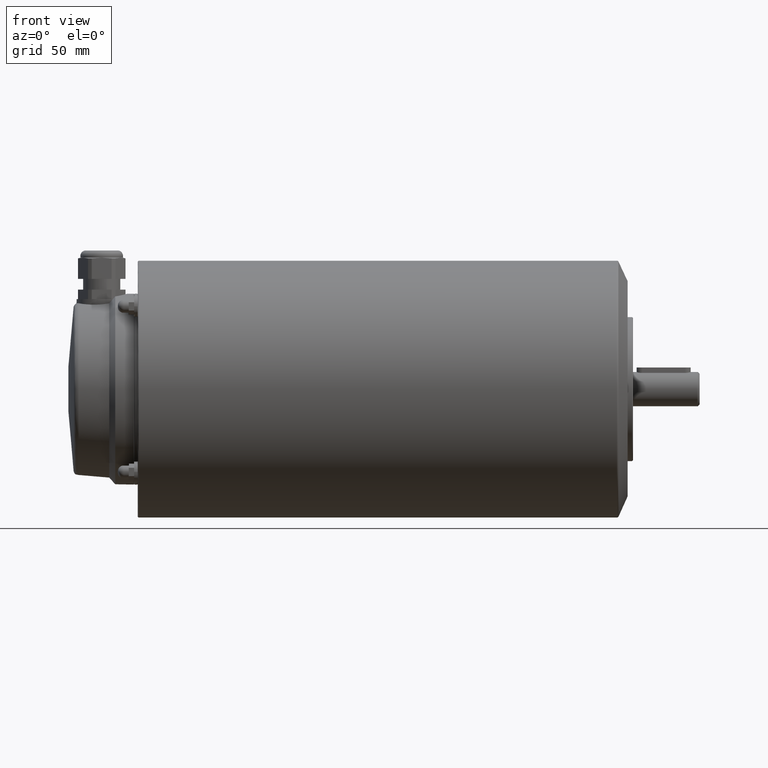
[diagram: clean part render]
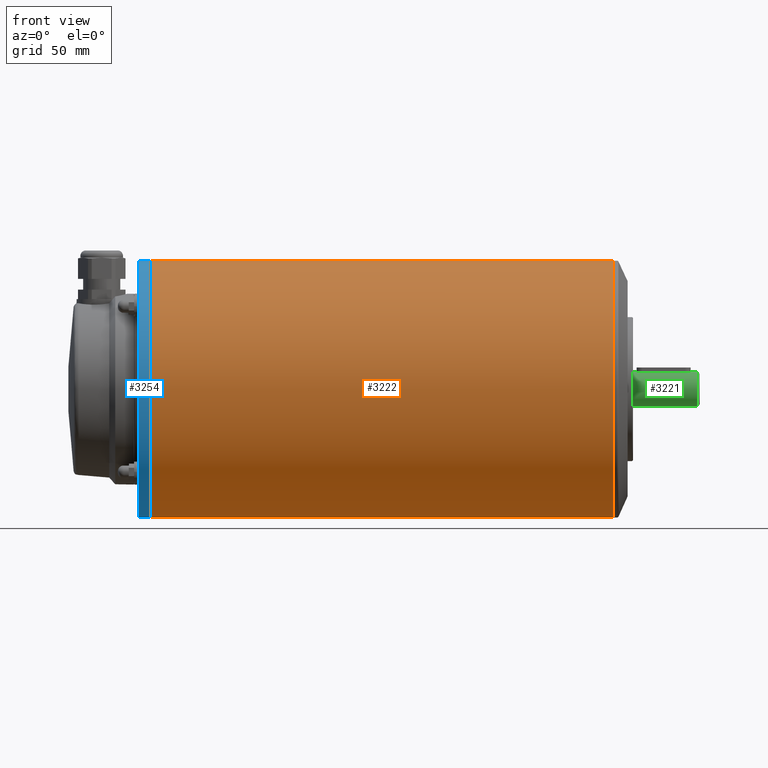
[diagram: same view with three faces highlighted in distinct colors, each labeled with its STEP entity id]
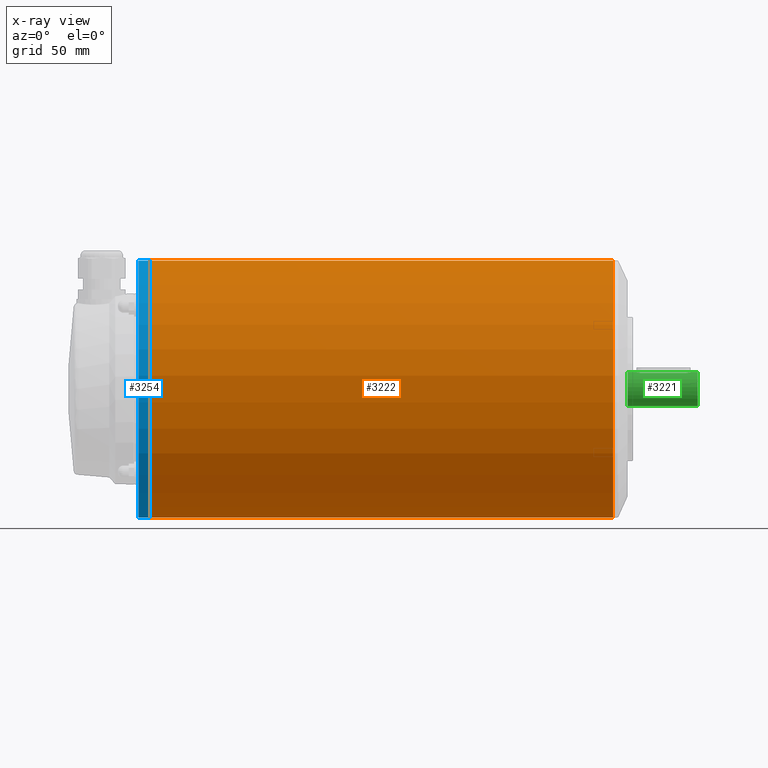
[diagram: x-ray of the same camera — body ghosted, the three highlighted faces saturated]
A machine part, front view with three faces highlighted in distinct colors.
The next image is the same camera in x-ray (body ghosted, the three faces saturated) — at least one of them is partly hidden behind the body in this view.
Their STEP definitions:

[orange] entity #3222 — the highlighted cylindrical surface (bore or boss wall) has radius 71.3 mm, axis along (-1, 0, 0).
#488=ORIENTED_EDGE('',*,*,#1034,.T.);
#489=ORIENTED_EDGE('',*,*,#1035,.F.);
#1034=EDGE_CURVE('',#1306,#1306,#1484,.T.);
#1035=EDGE_CURVE('',#1307,#1307,#1485,.T.);
#1306=VERTEX_POINT('',#4506);
#1307=VERTEX_POINT('',#4508);
#1484=CIRCLE('',#3422,71.3);
#1485=CIRCLE('',#3423,71.3);
#1594=EDGE_LOOP('',(#488));
#1595=EDGE_LOOP('',(#489));
#1837=FACE_BOUND('',#1594,.T.);
#1838=FACE_BOUND('',#1595,.T.);
#2071=CYLINDRICAL_SURFACE('',#3421,71.3);
#3222=ADVANCED_FACE('',(#1837,#1838),#2071,.T.);
#3421=AXIS2_PLACEMENT_3D('',#4504,#3786,#3787);
#3422=AXIS2_PLACEMENT_3D('',#4505,#3788,#3789);
#3423=AXIS2_PLACEMENT_3D('',#4507,#3790,#3791);
#3786=DIRECTION('',(-1.,0.,0.));
#3787=DIRECTION('',(0.,0.,1.));
#3788=DIRECTION('',(-1.,0.,0.));
#3789=DIRECTION('',(0.,0.,1.));
#3790=DIRECTION('',(-1.,0.,0.));
#3791=DIRECTION('',(0.,0.,1.));
#4504=CARTESIAN_POINT('',(-168.168341708543,0.,0.));
#4505=CARTESIAN_POINT('',(-8.00000000000001,0.,0.));
#4506=CARTESIAN_POINT('',(-8.00000000000001,0.,71.3));
#4507=CARTESIAN_POINT('',(-265.,0.,0.));
#4508=CARTESIAN_POINT('',(-265.,0.,71.3));

[blue] entity #3254 — the highlighted cylindrical surface (bore or boss wall) has radius 71.2995 mm, axis along (-1, 0, 0).
#573=ORIENTED_EDGE('',*,*,#1087,.T.);
#574=ORIENTED_EDGE('',*,*,#1088,.T.);
#1087=EDGE_CURVE('',#1352,#1352,#1527,.F.);
#1088=EDGE_CURVE('',#1353,#1353,#1528,.T.);
#1352=VERTEX_POINT('',#4686);
#1353=VERTEX_POINT('',#4688);
#1527=CIRCLE('',#3497,71.2995);
#1528=CIRCLE('',#3498,71.2995);
#1663=EDGE_LOOP('',(#573));
#1664=EDGE_LOOP('',(#574));
#1906=FACE_BOUND('',#1663,.T.);
#1907=FACE_BOUND('',#1664,.T.);
#2078=CYLINDRICAL_SURFACE('',#3496,71.2995);
#3254=ADVANCED_FACE('',(#1906,#1907),#2078,.T.);
#3496=AXIS2_PLACEMENT_3D('',#4684,#3936,#3937);
#3497=AXIS2_PLACEMENT_3D('',#4685,#3938,#3939);
#3498=AXIS2_PLACEMENT_3D('',#4687,#3940,#3941);
#3936=DIRECTION('',(-1.,0.,0.));
#3937=DIRECTION('',(0.,0.,1.));
#3938=DIRECTION('',(-1.,0.,0.));
#3939=DIRECTION('',(0.,0.,1.));
#3940=DIRECTION('',(-1.,0.,0.));
#3941=DIRECTION('',(0.,0.,1.));
#4684=CARTESIAN_POINT('',(-168.168341708543,0.,0.));
#4685=CARTESIAN_POINT('',(-271.5,0.,0.));
#4686=CARTESIAN_POINT('',(-271.5,0.,71.2995));
#4687=CARTESIAN_POINT('',(-265.,0.,0.));
#4688=CARTESIAN_POINT('',(-265.,0.,71.2995));

[green] entity #3221 — the highlighted cylindrical surface (bore or boss wall) has radius 9.5 mm, axis along (-1, 0, 0).
#50=B_SPLINE_CURVE_WITH_KNOTS('',3,(#4487,#4488,#4489,#4490,#4491,#4492,
#4493),.UNSPECIFIED.,.F.,.F.,(4,1,1,1,4),(7.05981306231723E-18,0.00235913369403734,
0.00471826738807467,0.00707740108211201,0.00943653477614934),
 .UNSPECIFIED.);
#51=B_SPLINE_CURVE_WITH_KNOTS('',3,(#4497,#4498,#4499,#4500,#4501,#4502,
#4503),.UNSPECIFIED.,.F.,.F.,(4,1,1,1,4),(0.,0.00235913369403734,0.00471826738807467,
0.00707740108211201,0.00943653477614934),.UNSPECIFIED.);
#174=LINE('',#4484,#308);
#175=LINE('',#4495,#309);
#308=VECTOR('',#3784,1000.);
#309=VECTOR('',#3785,1000.);
#482=ORIENTED_EDGE('',*,*,#1028,.T.);
#483=ORIENTED_EDGE('',*,*,#1029,.F.);
#484=ORIENTED_EDGE('',*,*,#1030,.T.);
#485=ORIENTED_EDGE('',*,*,#1031,.T.);
#486=ORIENTED_EDGE('',*,*,#1032,.T.);
#487=ORIENTED_EDGE('',*,*,#1033,.T.);
#1028=EDGE_CURVE('',#1300,#1300,#1482,.T.);
#1029=EDGE_CURVE('',#1301,#1301,#1483,.T.);
#1030=EDGE_CURVE('',#1302,#1303,#174,.T.);
#1031=EDGE_CURVE('',#1303,#1304,#50,.T.);
#1032=EDGE_CURVE('',#1304,#1305,#175,.F.);
#1033=EDGE_CURVE('',#1305,#1302,#51,.T.);
#1300=VERTEX_POINT('',#4481);
#1301=VERTEX_POINT('',#4483);
#1302=VERTEX_POINT('',#4485);
#1303=VERTEX_POINT('',#4486);
#1304=VERTEX_POINT('',#4494);
#1305=VERTEX_POINT('',#4496);
#1482=CIRCLE('',#3419,9.5);
#1483=CIRCLE('',#3420,9.5);
#1591=EDGE_LOOP('',(#482));
#1592=EDGE_LOOP('',(#483));
#1593=EDGE_LOOP('',(#484,#485,#486,#487));
#1834=FACE_BOUND('',#1591,.T.);
#1835=FACE_BOUND('',#1592,.T.);
#1836=FACE_BOUND('',#1593,.T.);
#2070=CYLINDRICAL_SURFACE('',#3418,9.5);
#3221=ADVANCED_FACE('',(#1834,#1835,#1836),#2070,.T.);
#3418=AXIS2_PLACEMENT_3D('',#4479,#3778,#3779);
#3419=AXIS2_PLACEMENT_3D('',#4480,#3780,#3781);
#3420=AXIS2_PLACEMENT_3D('',#4482,#3782,#3783);
#3778=DIRECTION('',(-1.,0.,0.));
#3779=DIRECTION('',(0.,0.,1.));
#3780=DIRECTION('',(-1.,0.,0.));
#3781=DIRECTION('',(0.,0.,1.));
#3782=DIRECTION('',(-1.,0.,0.));
#3783=DIRECTION('',(0.,0.,1.));
#3784=DIRECTION('',(-1.,0.,0.));
#3785=DIRECTION('',(-1.,0.,0.));
#4479=CARTESIAN_POINT('',(-168.168341708543,0.,0.));
#4480=CARTESIAN_POINT('',(39.,0.,0.));
#4481=CARTESIAN_POINT('',(39.,0.,9.5));
#4482=CARTESIAN_POINT('',(0.,0.,0.));
#4483=CARTESIAN_POINT('',(0.,0.,9.5));
#4484=CARTESIAN_POINT('',(-168.168341708543,-3.00000000000003,9.01387818865996));
#4485=CARTESIAN_POINT('',(32.,-3.00000000000003,9.01387818865996));
#4486=CARTESIAN_POINT('',(8.,-3.00000000000001,9.01387818865984));
#4487=CARTESIAN_POINT('',(8.,-3.00000000000001,9.01387818865997));
#4488=CARTESIAN_POINT('',(7.20186755659641,-3.00000000000001,9.01387818865997));
#4489=CARTESIAN_POINT('',(5.65668953164717,-2.34973654444338,9.26326022461961));
#4490=CARTESIAN_POINT('',(4.67198738414268,-0.00496819768990379,9.61829195451961));
#4491=CARTESIAN_POINT('',(5.65537031765033,2.35122751898947,9.26356899334425));
#4492=CARTESIAN_POINT('',(7.20180100977493,2.99999999999999,9.01387818865998));
#4493=CARTESIAN_POINT('',(8.,2.99999999999999,9.01387818865998));
#4494=CARTESIAN_POINT('',(8.,2.99999999999999,9.01387818865984));
#4495=CARTESIAN_POINT('',(-168.168341708543,2.99999999999998,9.01387818865997));
#4496=CARTESIAN_POINT('',(32.,3.,9.01387818865997));
#4497=CARTESIAN_POINT('',(32.,2.99999999999999,9.01387818865997));
#4498=CARTESIAN_POINT('',(32.7981324434036,2.99999999999999,9.01387818865997));
#4499=CARTESIAN_POINT('',(34.3433104683528,2.34973654444338,9.26326022461961));
#4500=CARTESIAN_POINT('',(35.3280126158573,0.00496819768989591,9.61829195451961));
#4501=CARTESIAN_POINT('',(34.3446296823497,-2.35122751898948,9.26356899334425));
#4502=CARTESIAN_POINT('',(32.7981989902251,-3.00000000000001,9.01387818865997));
#4503=CARTESIAN_POINT('',(32.,-3.00000000000001,9.01387818865997));